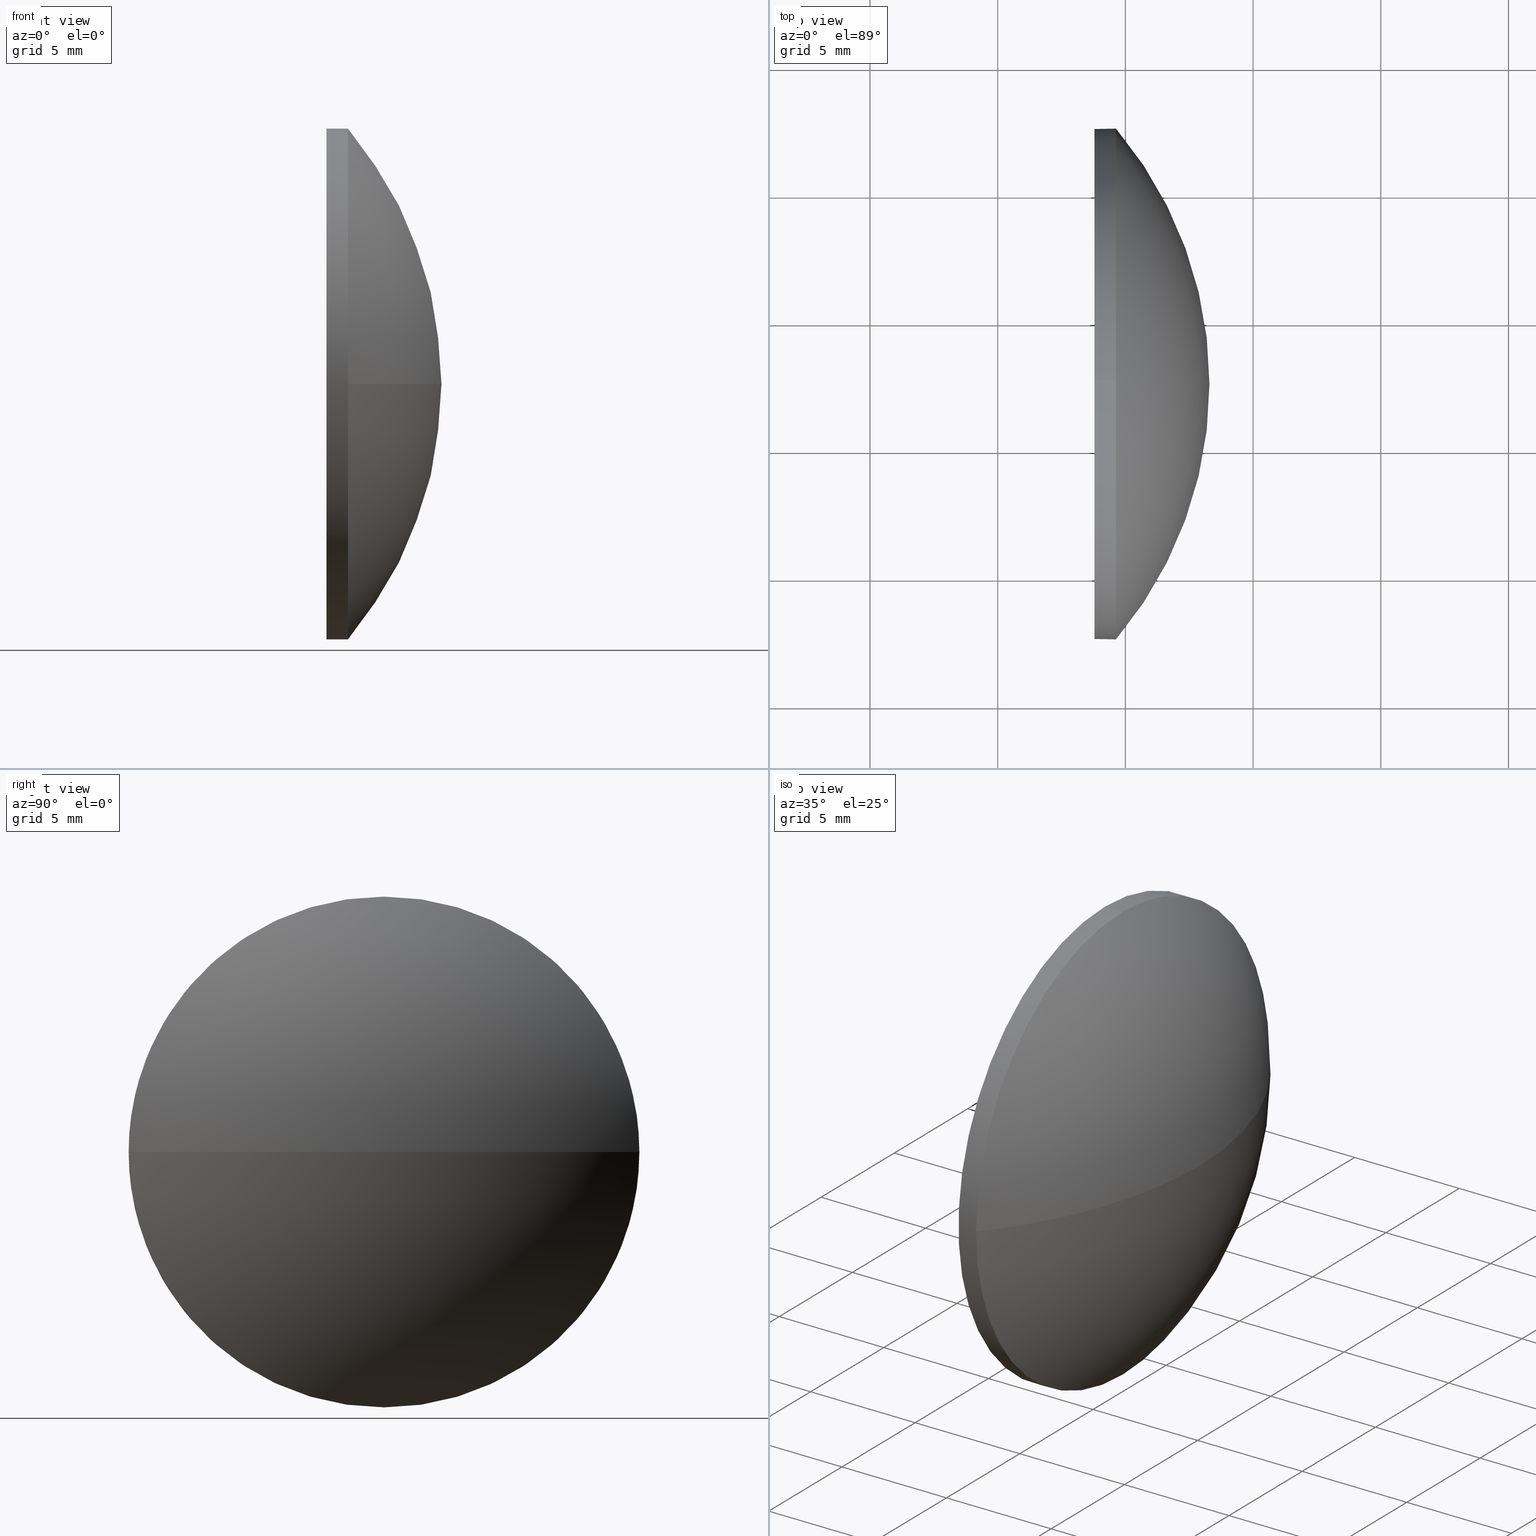
[diagram: canonical four-view strip — front | top / right | iso, engineering-drawing reading convention]
A machine part, canonical four-view strip (front | top / right | iso — engineering-drawing reading convention). The complete STEP part file that produces these views, byte-faithful:
ISO-10303-21;
HEADER;
FILE_DESCRIPTION (( 'STEP AP214' ),
    '1' );
FILE_NAME ('100120.STEP',
    '2019-05-14T05:38:52',
    ( '' ),
    ( '' ),
    'SwSTEP 2.0',
    'SolidWorks 2016',
    '' );
FILE_SCHEMA (( 'AUTOMOTIVE_DESIGN' ));
ENDSEC;

DATA;
#1 = EDGE_CURVE ( 'NONE', #84, #19, #34, .T. ) ;
#2 = AXIS2_PLACEMENT_3D ( 'NONE', #182, #22, #117 ) ;
#3 = UNCERTAINTY_MEASURE_WITH_UNIT (LENGTH_MEASURE( 1.000000000000000100E-005 ), #160, 'distance_accuracy_value', 'NONE');
#4 = ORIENTED_EDGE ( 'NONE', *, *, #106, .F. ) ;
#5 = PRESENTATION_STYLE_ASSIGNMENT (( #119 ) ) ;
#6 = CIRCLE ( 'NONE', #2, 9.999999999999994700 ) ;
#7 = ADVANCED_FACE ( 'NONE', ( #86 ), #68, .T. ) ;
#8 = SURFACE_STYLE_FILL_AREA ( #87 ) ;
#9 = EDGE_LOOP ( 'NONE', ( #4, #163, #78, #118 ) ) ;
#10 = EDGE_CURVE ( 'NONE', #139, #99, #42, .T. ) ;
#11 =( GEOMETRIC_REPRESENTATION_CONTEXT ( 3 ) GLOBAL_UNCERTAINTY_ASSIGNED_CONTEXT ( ( #3 ) ) GLOBAL_UNIT_ASSIGNED_CONTEXT ( ( #160, #180, #88 ) ) REPRESENTATION_CONTEXT ( 'NONE', 'WORKASPACE' ) );
#12 = DIRECTION ( 'NONE',  ( 0.0000000000000000000, 1.224646799147353200E-016, -1.000000000000000000 ) ) ;
#13 = PRESENTATION_STYLE_ASSIGNMENT (( #162 ) ) ;
#14 = APPLICATION_CONTEXT ( 'automotive_design' ) ;
#15 = FILL_AREA_STYLE_COLOUR ( '', #138 ) ;
#16 = ORIENTED_EDGE ( 'NONE', *, *, #10, .T. ) ;
#17 = EDGE_CURVE ( 'NONE', #81, #142, #96, .T. ) ;
#18 = ORIENTED_EDGE ( 'NONE', *, *, #82, .T. ) ;
#19 = VERTEX_POINT ( 'NONE', #146 ) ;
#20 = ORIENTED_EDGE ( 'NONE', *, *, #45, .T. ) ;
#21 = CARTESIAN_POINT ( 'NONE',  ( 434.6316024094511500, 97.54092323461679800, 0.0000000000000000000 ) ) ;
#22 = DIRECTION ( 'NONE',  ( -1.000000000000000000, -0.0000000000000000000, -0.0000000000000000000 ) ) ;
#23 = COLOUR_RGB ( '',1.000000000000000000, 1.000000000000000000, 1.000000000000000000 ) ;
#24 = DIRECTION ( 'NONE',  ( -1.000000000000000000, -0.0000000000000000000, -0.0000000000000000000 ) ) ;
#25 = AXIS2_PLACEMENT_3D ( 'NONE', #161, #158, #102 ) ;
#26 = UNCERTAINTY_MEASURE_WITH_UNIT (LENGTH_MEASURE( 1.000000000000000100E-005 ), #50, 'distance_accuracy_value', 'NONE');
#27 = DIRECTION ( 'NONE',  ( -1.000000000000000000, -0.0000000000000000000, -0.0000000000000000000 ) ) ;
#28 = CARTESIAN_POINT ( 'NONE',  ( 433.7916024094511200, 97.54092323461679800, 0.0000000000000000000 ) ) ;
#29 = APPLICATION_CONTEXT ( 'automotive_design' ) ;
#30 =( NAMED_UNIT ( * ) PLANE_ANGLE_UNIT ( ) SI_UNIT ( $, .RADIAN. ) );
#31 = ADVANCED_BREP_SHAPE_REPRESENTATION ( '100120', ( #95, #153 ), #175 ) ;
#32 = AXIS2_PLACEMENT_3D ( 'NONE', #145, #178, #134 ) ;
#33 = LINE ( 'NONE', #108, #97 ) ;
#34 = CIRCLE ( 'NONE', #25, 9.999999999999994700 ) ;
#35 = ORIENTED_EDGE ( 'NONE', *, *, #113, .T. ) ;
#36 = CARTESIAN_POINT ( 'NONE',  ( 422.8044958310844700, 97.54092323461678400, 0.0000000000000000000 ) ) ;
#37 = EDGE_CURVE ( 'NONE', #142, #84, #157, .T. ) ;
#38 = AXIS2_PLACEMENT_3D ( 'NONE', #185, #12, #64 ) ;
#39 = DIRECTION ( 'NONE',  ( 0.0000000000000000000, 0.0000000000000000000, 1.000000000000000000 ) ) ;
#40 =( NAMED_UNIT ( * ) PLANE_ANGLE_UNIT ( ) SI_UNIT ( $, .RADIAN. ) );
#41 =( NAMED_UNIT ( * ) SI_UNIT ( $, .STERADIAN. ) SOLID_ANGLE_UNIT ( ) );
#42 = CIRCLE ( 'NONE', #52, 9.999999999999994700 ) ;
#43 = ORIENTED_EDGE ( 'NONE', *, *, #173, .T. ) ;
#44 = ORIENTED_EDGE ( 'NONE', *, *, #82, .F. ) ;
#45 = EDGE_CURVE ( 'NONE', #142, #139, #123, .T. ) ;
#46 = AXIS2_PLACEMENT_3D ( 'NONE', #79, #27, #65 ) ;
#47 = AXIS2_PLACEMENT_3D ( 'NONE', #48, #71, #179 ) ;
#48 = CARTESIAN_POINT ( 'NONE',  ( 434.6316024094511500, 97.54092323461679800, 0.0000000000000000000 ) ) ;
#49 = CARTESIAN_POINT ( 'NONE',  ( 434.6316024094511500, 87.54092323461678400, -1.224646799147352500E-015 ) ) ;
#50 =( LENGTH_UNIT ( ) NAMED_UNIT ( * ) SI_UNIT ( .MILLI., .METRE. ) );
#51 = EDGE_LOOP ( 'NONE', ( #126, #18, #169, #20, #57 ) ) ;
#52 = AXIS2_PLACEMENT_3D ( 'NONE', #62, #85, #129 ) ;
#53 = APPLICATION_PROTOCOL_DEFINITION ( 'draft international standard', 'automotive_design', 1998, #29 ) ;
#54 = SURFACE_SIDE_STYLE ('',( #109 ) ) ;
#55 = CARTESIAN_POINT ( 'NONE',  ( 433.7916024094511200, 97.54092323461679800, -9.999999999999994700 ) ) ;
#56 = ORIENTED_EDGE ( 'NONE', *, *, #10, .F. ) ;
#57 = ORIENTED_EDGE ( 'NONE', *, *, #113, .F. ) ;
#58 = PRODUCT_DEFINITION_FORMATION_WITH_SPECIFIED_SOURCE ( '�κ�', '', #77, .NOT_KNOWN. ) ;
#59 = VECTOR ( 'NONE', #101, 1000.000000000000000 ) ;
#60 = ORIENTED_EDGE ( 'NONE', *, *, #37, .T. ) ;
#61 = SURFACE_SIDE_STYLE ('',( #8 ) ) ;
#62 = CARTESIAN_POINT ( 'NONE',  ( 433.7916024094511200, 97.54092323461679800, 0.0000000000000000000 ) ) ;
#63 = CARTESIAN_POINT ( 'NONE',  ( 422.8044958310844700, 97.54092323461678400, 0.0000000000000000000 ) ) ;
#64 = DIRECTION ( 'NONE',  ( 0.0000000000000000000, 1.000000000000000000, 1.224646799147353200E-016 ) ) ;
#65 = DIRECTION ( 'NONE',  ( 0.0000000000000000000, 0.0000000000000000000, 1.000000000000000000 ) ) ;
#66 = CIRCLE ( 'NONE', #69, 15.48807444507044400 ) ;
#67 = MECHANICAL_DESIGN_GEOMETRIC_PRESENTATION_REPRESENTATION (  '', ( #170 ), #132 ) ;
#68 = SPHERICAL_SURFACE ( 'NONE', #32, 15.48807444507044400 ) ;
#69 = AXIS2_PLACEMENT_3D ( 'NONE', #63, #75, #184 ) ;
#70 = CIRCLE ( 'NONE', #38, 15.48807444507044400 ) ;
#71 = DIRECTION ( 'NONE',  ( -1.000000000000000000, -0.0000000000000000000, -0.0000000000000000000 ) ) ;
#72 = MECHANICAL_DESIGN_GEOMETRIC_PRESENTATION_REPRESENTATION (  '', ( #174 ), #11 ) ;
#73 = ORIENTED_EDGE ( 'NONE', *, *, #106, .T. ) ;
#74 = DIRECTION ( 'NONE',  ( -0.0000000000000000000, 0.0000000000000000000, -1.000000000000000000 ) ) ;
#75 = DIRECTION ( 'NONE',  ( -0.0000000000000000000, 0.0000000000000000000, 1.000000000000000000 ) ) ;
#76 = AXIS2_PLACEMENT_3D ( 'NONE', #137, #103, #89 ) ;
#77 = PRODUCT ( '100120', '100120', '', ( #136 ) ) ;
#78 = ORIENTED_EDGE ( 'NONE', *, *, #37, .F. ) ;
#79 = CARTESIAN_POINT ( 'NONE',  ( 431.3880815283939700, 97.54092323461679800, 0.0000000000000000000 ) ) ;
#80 = FACE_OUTER_BOUND ( 'NONE', #159, .T. ) ;
#81 = VERTEX_POINT ( 'NONE', #49 ) ;
#82 = EDGE_CURVE ( 'NONE', #19, #81, #6, .T. ) ;
#83 = AXIS2_PLACEMENT_3D ( 'NONE', #28, #183, #39 ) ;
#84 = VERTEX_POINT ( 'NONE', #148 ) ;
#85 = DIRECTION ( 'NONE',  ( -1.000000000000000000, -0.0000000000000000000, -0.0000000000000000000 ) ) ;
#86 = FACE_OUTER_BOUND ( 'NONE', #9, .T. ) ;
#87 = FILL_AREA_STYLE ('',( #114 ) ) ;
#88 =( NAMED_UNIT ( * ) SI_UNIT ( $, .STERADIAN. ) SOLID_ANGLE_UNIT ( ) );
#89 = DIRECTION ( 'NONE',  ( 0.0000000000000000000, 0.0000000000000000000, -1.000000000000000000 ) ) ;
#90 = CARTESIAN_POINT ( 'NONE',  ( 438.2925702761549500, 97.54092323461678400, 0.0000000000000000000 ) ) ;
#91 = DIRECTION ( 'NONE',  ( -1.000000000000000000, -0.0000000000000000000, -0.0000000000000000000 ) ) ;
#92 = DIRECTION ( 'NONE',  ( 1.000000000000000000, 0.0000000000000000000, 0.0000000000000000000 ) ) ;
#93 = CYLINDRICAL_SURFACE ( 'NONE', #128, 9.999999999999994700 ) ;
#94 = PRESENTATION_LAYER_ASSIGNMENT (  '', '', ( #174 ) ) ;
#95 = MANIFOLD_SOLID_BREP ( '��ת1', #125 ) ;
#96 = CIRCLE ( 'NONE', #150, 9.999999999999994700 ) ;
#97 = VECTOR ( 'NONE', #91, 1000.000000000000000 ) ;
#98 = ADVANCED_FACE ( 'NONE', ( #115 ), #172, .T. ) ;
#99 = VERTEX_POINT ( 'NONE', #55 ) ;
#100 = PRESENTATION_LAYER_ASSIGNMENT (  '', '', ( #170 ) ) ;
#101 = DIRECTION ( 'NONE',  ( -1.000000000000000000, -0.0000000000000000000, -0.0000000000000000000 ) ) ;
#102 = DIRECTION ( 'NONE',  ( 0.0000000000000000000, 0.0000000000000000000, 1.000000000000000000 ) ) ;
#103 = DIRECTION ( 'NONE',  ( 1.000000000000000000, 0.0000000000000000000, 0.0000000000000000000 ) ) ;
#104 = PRODUCT_DEFINITION_SHAPE ( 'NONE', 'NONE',  #166 ) ;
#105 = DIRECTION ( 'NONE',  ( 0.0000000000000000000, 0.0000000000000000000, 1.000000000000000000 ) ) ;
#106 = EDGE_CURVE ( 'NONE', #131, #81, #70, .T. ) ;
#107 = APPLICATION_PROTOCOL_DEFINITION ( 'draft international standard', 'automotive_design', 1998, #14 ) ;
#108 = CARTESIAN_POINT ( 'NONE',  ( 431.3880815283939700, 97.54092323461679800, -9.999999999999994700 ) ) ;
#109 = SURFACE_STYLE_FILL_AREA ( #122 ) ;
#110 = PRODUCT_RELATED_PRODUCT_CATEGORY ( 'part', '', ( #77 ) ) ;
#111 = AXIS2_PLACEMENT_3D ( 'NONE', #36, #74, #140 ) ;
#112 = ORIENTED_EDGE ( 'NONE', *, *, #45, .F. ) ;
#113 = EDGE_CURVE ( 'NONE', #99, #139, #181, .T. ) ;
#114 = FILL_AREA_STYLE_COLOUR ( '', #23 ) ;
#115 = FACE_OUTER_BOUND ( 'NONE', #135, .T. ) ;
#116 = PRODUCT_DEFINITION_CONTEXT ( 'detailed design', #29, 'design' ) ;
#117 = DIRECTION ( 'NONE',  ( 0.0000000000000000000, 0.0000000000000000000, 1.000000000000000000 ) ) ;
#118 = ORIENTED_EDGE ( 'NONE', *, *, #17, .F. ) ;
#119 = SURFACE_STYLE_USAGE ( .BOTH. , #61 ) ;
#120 = CARTESIAN_POINT ( 'NONE',  ( 433.7916024094511200, 97.54092323461679800, 9.999999999999994700 ) ) ;
#121 = CARTESIAN_POINT ( 'NONE',  ( 0.0000000000000000000, 0.0000000000000000000, 0.0000000000000000000 ) ) ;
#122 = FILL_AREA_STYLE ('',( #15 ) ) ;
#123 = LINE ( 'NONE', #156, #59 ) ;
#124 = ORIENTED_EDGE ( 'NONE', *, *, #127, .F. ) ;
#125 = CLOSED_SHELL ( 'NONE', ( #143, #98, #7, #147, #130 ) ) ;
#126 = ORIENTED_EDGE ( 'NONE', *, *, #173, .F. ) ;
#127 = EDGE_CURVE ( 'NONE', #131, #84, #66, .T. ) ;
#128 = AXIS2_PLACEMENT_3D ( 'NONE', #168, #24, #105 ) ;
#129 = DIRECTION ( 'NONE',  ( 0.0000000000000000000, 0.0000000000000000000, 1.000000000000000000 ) ) ;
#130 = ADVANCED_FACE ( 'NONE', ( #80 ), #164, .F. ) ;
#131 = VERTEX_POINT ( 'NONE', #90 ) ;
#132 =( GEOMETRIC_REPRESENTATION_CONTEXT ( 3 ) GLOBAL_UNCERTAINTY_ASSIGNED_CONTEXT ( ( #154 ) ) GLOBAL_UNIT_ASSIGNED_CONTEXT ( ( #186, #30, #165 ) ) REPRESENTATION_CONTEXT ( 'NONE', 'WORKASPACE' ) );
#133 = DIRECTION ( 'NONE',  ( -1.000000000000000000, -0.0000000000000000000, -0.0000000000000000000 ) ) ;
#134 = DIRECTION ( 'NONE',  ( 0.0000000000000000000, 1.000000000000000000, 0.0000000000000000000 ) ) ;
#135 = EDGE_LOOP ( 'NONE', ( #124, #73, #44, #177 ) ) ;
#136 = PRODUCT_CONTEXT ( 'NONE', #14, 'mechanical' ) ;
#137 = CARTESIAN_POINT ( 'NONE',  ( 433.7916024094511200, 97.54092323461679800, 0.0000000000000000000 ) ) ;
#138 = COLOUR_RGB ( '',1.000000000000000000, 1.000000000000000000, 1.000000000000000000 ) ;
#139 = VERTEX_POINT ( 'NONE', #120 ) ;
#140 = DIRECTION ( 'NONE',  ( 0.0000000000000000000, 1.000000000000000000, 0.0000000000000000000 ) ) ;
#141 = CYLINDRICAL_SURFACE ( 'NONE', #46, 9.999999999999994700 ) ;
#142 = VERTEX_POINT ( 'NONE', #151 ) ;
#143 = ADVANCED_FACE ( 'NONE', ( #155 ), #93, .T. ) ;
#144 = FACE_OUTER_BOUND ( 'NONE', #51, .T. ) ;
#145 = CARTESIAN_POINT ( 'NONE',  ( 422.8044958310844700, 97.54092323461678400, 0.0000000000000000000 ) ) ;
#146 = CARTESIAN_POINT ( 'NONE',  ( 434.6316024094511500, 97.54092323461679800, -9.999999999999994700 ) ) ;
#147 = ADVANCED_FACE ( 'NONE', ( #144 ), #141, .T. ) ;
#148 = CARTESIAN_POINT ( 'NONE',  ( 434.6316024094511500, 107.5409232346168000, 0.0000000000000000000 ) ) ;
#149 = ORIENTED_EDGE ( 'NONE', *, *, #1, .T. ) ;
#150 = AXIS2_PLACEMENT_3D ( 'NONE', #21, #133, #176 ) ;
#151 = CARTESIAN_POINT ( 'NONE',  ( 434.6316024094511500, 97.54092323461679800, 9.999999999999994700 ) ) ;
#152 = EDGE_LOOP ( 'NONE', ( #149, #43, #56, #112, #60 ) ) ;
#153 = AXIS2_PLACEMENT_3D ( 'NONE', #121, #167, #92 ) ;
#154 = UNCERTAINTY_MEASURE_WITH_UNIT (LENGTH_MEASURE( 1.000000000000000100E-005 ), #186, 'distance_accuracy_value', 'NONE');
#155 = FACE_OUTER_BOUND ( 'NONE', #152, .T. ) ;
#156 = CARTESIAN_POINT ( 'NONE',  ( 431.3880815283939700, 97.54092323461679800, 9.999999999999994700 ) ) ;
#157 = CIRCLE ( 'NONE', #47, 9.999999999999994700 ) ;
#158 = DIRECTION ( 'NONE',  ( -1.000000000000000000, -0.0000000000000000000, -0.0000000000000000000 ) ) ;
#159 = EDGE_LOOP ( 'NONE', ( #16, #35 ) ) ;
#160 =( LENGTH_UNIT ( ) NAMED_UNIT ( * ) SI_UNIT ( .MILLI., .METRE. ) );
#161 = CARTESIAN_POINT ( 'NONE',  ( 434.6316024094511500, 97.54092323461679800, 0.0000000000000000000 ) ) ;
#162 = SURFACE_STYLE_USAGE ( .BOTH. , #54 ) ;
#163 = ORIENTED_EDGE ( 'NONE', *, *, #127, .T. ) ;
#164 = PLANE ( 'NONE',  #76 ) ;
#165 =( NAMED_UNIT ( * ) SI_UNIT ( $, .STERADIAN. ) SOLID_ANGLE_UNIT ( ) );
#166 = PRODUCT_DEFINITION ( 'δ֪', '', #58, #116 ) ;
#167 = DIRECTION ( 'NONE',  ( 0.0000000000000000000, 0.0000000000000000000, 1.000000000000000000 ) ) ;
#168 = CARTESIAN_POINT ( 'NONE',  ( 431.3880815283939700, 97.54092323461679800, 0.0000000000000000000 ) ) ;
#169 = ORIENTED_EDGE ( 'NONE', *, *, #17, .T. ) ;
#170 = STYLED_ITEM ( 'NONE', ( #13 ), #31 ) ;
#171 = SHAPE_DEFINITION_REPRESENTATION ( #104, #31 ) ;
#172 = SPHERICAL_SURFACE ( 'NONE', #111, 15.48807444507044400 ) ;
#173 = EDGE_CURVE ( 'NONE', #19, #99, #33, .T. ) ;
#174 = STYLED_ITEM ( 'NONE', ( #5 ), #95 ) ;
#175 =( GEOMETRIC_REPRESENTATION_CONTEXT ( 3 ) GLOBAL_UNCERTAINTY_ASSIGNED_CONTEXT ( ( #26 ) ) GLOBAL_UNIT_ASSIGNED_CONTEXT ( ( #50, #40, #41 ) ) REPRESENTATION_CONTEXT ( 'NONE', 'WORKASPACE' ) );
#176 = DIRECTION ( 'NONE',  ( 0.0000000000000000000, 0.0000000000000000000, 1.000000000000000000 ) ) ;
#177 = ORIENTED_EDGE ( 'NONE', *, *, #1, .F. ) ;
#178 = DIRECTION ( 'NONE',  ( -0.0000000000000000000, 0.0000000000000000000, -1.000000000000000000 ) ) ;
#179 = DIRECTION ( 'NONE',  ( 0.0000000000000000000, 0.0000000000000000000, 1.000000000000000000 ) ) ;
#180 =( NAMED_UNIT ( * ) PLANE_ANGLE_UNIT ( ) SI_UNIT ( $, .RADIAN. ) );
#181 = CIRCLE ( 'NONE', #83, 9.999999999999994700 ) ;
#182 = CARTESIAN_POINT ( 'NONE',  ( 434.6316024094511500, 97.54092323461679800, 0.0000000000000000000 ) ) ;
#183 = DIRECTION ( 'NONE',  ( -1.000000000000000000, -0.0000000000000000000, -0.0000000000000000000 ) ) ;
#184 = DIRECTION ( 'NONE',  ( 1.000000000000000000, 0.0000000000000000000, 0.0000000000000000000 ) ) ;
#185 = CARTESIAN_POINT ( 'NONE',  ( 422.8044958310844700, 97.54092323461678400, 0.0000000000000000000 ) ) ;
#186 =( LENGTH_UNIT ( ) NAMED_UNIT ( * ) SI_UNIT ( .MILLI., .METRE. ) );
ENDSEC;
END-ISO-10303-21;
